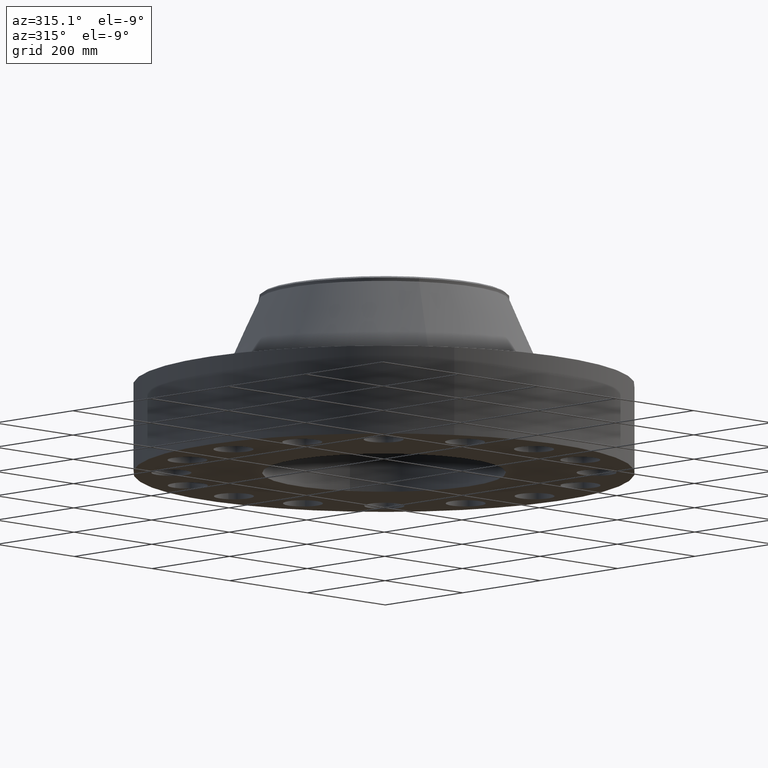
[diagram: clean part render]
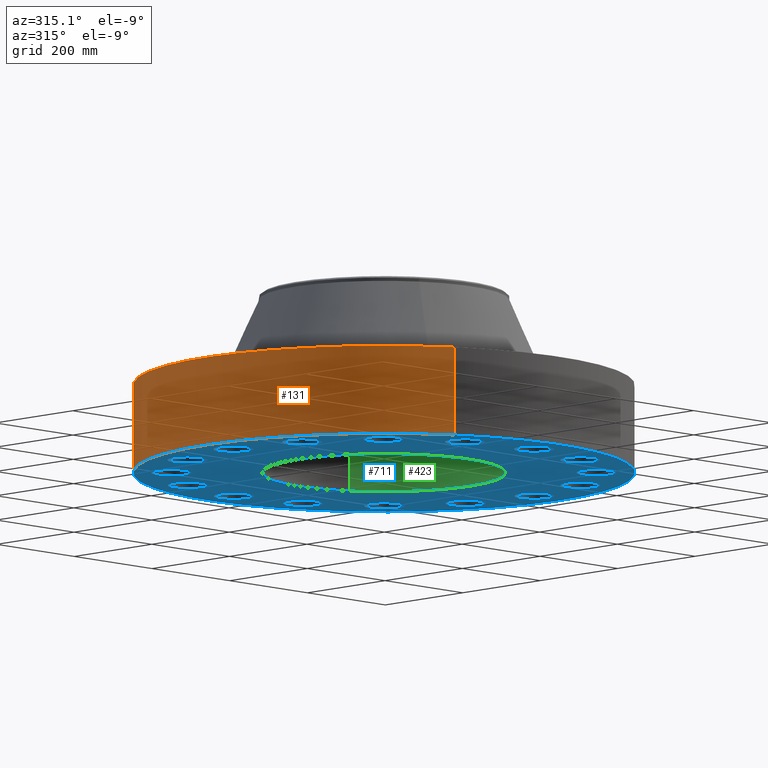
[diagram: same view with three faces highlighted in distinct colors, each labeled with its STEP entity id]
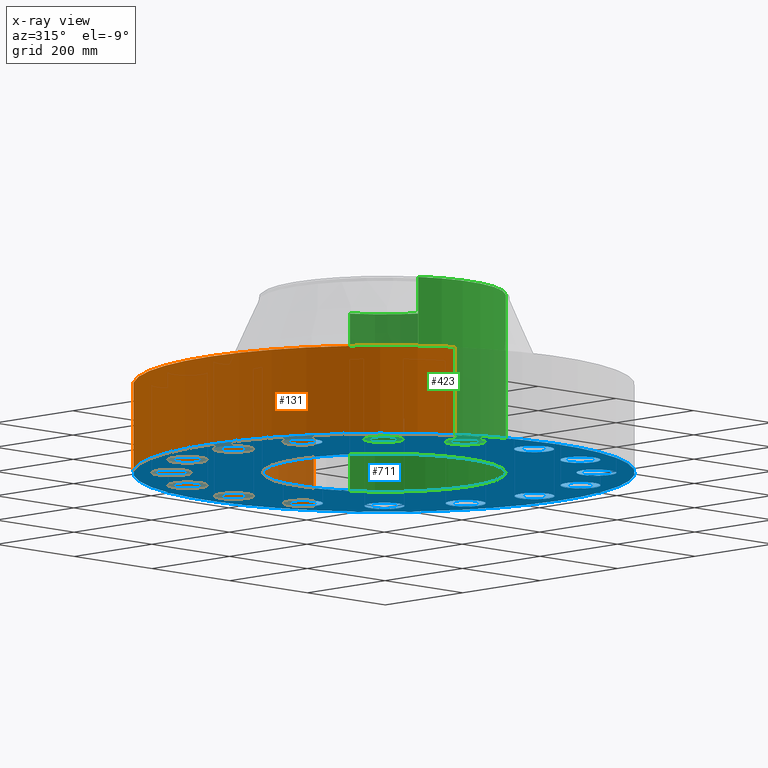
[diagram: x-ray of the same camera — body ghosted, the three highlighted faces saturated]
A machine part, auxiliary view with three faces highlighted in distinct colors.
The next image is the same camera in x-ray (body ghosted, the three faces saturated) — at least one of them is partly hidden behind the body in this view.
Their STEP definitions:

[orange] entity #131 — the highlighted cylindrical surface (partial cylindrical patch) has radius 457.2 mm, axis along (0, 0, -1).
#95=AXIS2_PLACEMENT_3D('Cylinder Axis2P3D',#92,#93,#94) ;
#99=AXIS2_PLACEMENT_3D('Circle Axis2P3D',#97,#98,$) ;
#115=AXIS2_PLACEMENT_3D('Circle Axis2P3D',#113,#114,$) ;
#92=CARTESIAN_POINT('Axis2P3D Location',(0.,0.,6.44000000003)) ;
#97=CARTESIAN_POINT('Axis2P3D Location',(0.,0.,2.23792987641E-015)) ;
#101=CARTESIAN_POINT('Vertex',(-8.62965969491,-15.7964861141,2.23792987641E-015)) ;
#103=CARTESIAN_POINT('Vertex',(8.62965969491,15.7964861141,2.23792987641E-015)) ;
#106=CARTESIAN_POINT('Line Origine',(-8.62965969491,-15.7964861141,3.19000000001)) ;
#110=CARTESIAN_POINT('Vertex',(-8.62965969491,-15.7964861141,6.38000000003)) ;
#113=CARTESIAN_POINT('Axis2P3D Location',(0.,0.,6.38000000003)) ;
#117=CARTESIAN_POINT('Vertex',(8.62965969491,15.7964861141,6.38000000003)) ;
#120=CARTESIAN_POINT('Line Origine',(8.62965969491,15.7964861141,3.19000000001)) ;
#93=DIRECTION('Axis2P3D Direction',(0.,0.,-0.0393700787402)) ;
#94=DIRECTION('Axis2P3D XDirection',(0.0188750212049,0.0345504945626,0.)) ;
#98=DIRECTION('Axis2P3D Direction',(0.,0.,-0.0393700787402)) ;
#107=DIRECTION('Vector Direction',(0.,0.,-0.0393700787402)) ;
#114=DIRECTION('Axis2P3D Direction',(0.,0.,-0.0393700787402)) ;
#121=DIRECTION('Vector Direction',(0.,0.,-0.0393700787402)) ;
#108=VECTOR('Line Direction',#107,0.0393700787402) ;
#122=VECTOR('Line Direction',#121,0.0393700787402) ;
#126=ORIENTED_EDGE('',*,*,#105,.F.) ;
#127=ORIENTED_EDGE('',*,*,#112,.T.) ;
#128=ORIENTED_EDGE('',*,*,#119,.T.) ;
#129=ORIENTED_EDGE('',*,*,#124,.F.) ;
#131=ADVANCED_FACE('PartBody',(#130),#96,.T.) ;
#100=CIRCLE('generated circle',#99,18.0000000001) ;
#116=CIRCLE('generated circle',#115,18.0000000001) ;
#96=CYLINDRICAL_SURFACE('generated cylinder',#95,18.0000000001) ;
#105=EDGE_CURVE('',#102,#104,#100,.T.) ;
#112=EDGE_CURVE('',#102,#111,#109,.F.) ;
#119=EDGE_CURVE('',#111,#118,#116,.T.) ;
#124=EDGE_CURVE('',#104,#118,#123,.F.) ;
#125=EDGE_LOOP('',(#126,#127,#128,#129)) ;
#130=FACE_OUTER_BOUND('',#125,.T.) ;
#109=LINE('Line',#106,#108) ;
#123=LINE('Line',#120,#122) ;
#102=VERTEX_POINT('',#101) ;
#104=VERTEX_POINT('',#103) ;
#111=VERTEX_POINT('',#110) ;
#118=VERTEX_POINT('',#117) ;

[blue] entity #711 — the highlighted planar face has unit normal (0, 0, -1).
#51=AXIS2_PLACEMENT_3D('Circle Axis2P3D',#49,#50,$) ;
#77=AXIS2_PLACEMENT_3D('Circle Axis2P3D',#75,#76,$) ;
#99=AXIS2_PLACEMENT_3D('Circle Axis2P3D',#97,#98,$) ;
#134=AXIS2_PLACEMENT_3D('Circle Axis2P3D',#132,#133,$) ;
#395=AXIS2_PLACEMENT_3D('Circle Axis2P3D',#393,#394,$) ;
#414=AXIS2_PLACEMENT_3D('Circle Axis2P3D',#412,#413,$) ;
#427=AXIS2_PLACEMENT_3D('Plane Axis2P3D',#424,#425,#426) ;
#443=AXIS2_PLACEMENT_3D('Circle Axis2P3D',#441,#442,$) ;
#452=AXIS2_PLACEMENT_3D('Circle Axis2P3D',#450,#451,$) ;
#461=AXIS2_PLACEMENT_3D('Circle Axis2P3D',#459,#460,$) ;
#470=AXIS2_PLACEMENT_3D('Circle Axis2P3D',#468,#469,$) ;
#479=AXIS2_PLACEMENT_3D('Circle Axis2P3D',#477,#478,$) ;
#488=AXIS2_PLACEMENT_3D('Circle Axis2P3D',#486,#487,$) ;
#497=AXIS2_PLACEMENT_3D('Circle Axis2P3D',#495,#496,$) ;
#506=AXIS2_PLACEMENT_3D('Circle Axis2P3D',#504,#505,$) ;
#515=AXIS2_PLACEMENT_3D('Circle Axis2P3D',#513,#514,$) ;
#524=AXIS2_PLACEMENT_3D('Circle Axis2P3D',#522,#523,$) ;
#533=AXIS2_PLACEMENT_3D('Circle Axis2P3D',#531,#532,$) ;
#542=AXIS2_PLACEMENT_3D('Circle Axis2P3D',#540,#541,$) ;
#551=AXIS2_PLACEMENT_3D('Circle Axis2P3D',#549,#550,$) ;
#560=AXIS2_PLACEMENT_3D('Circle Axis2P3D',#558,#559,$) ;
#569=AXIS2_PLACEMENT_3D('Circle Axis2P3D',#567,#568,$) ;
#578=AXIS2_PLACEMENT_3D('Circle Axis2P3D',#576,#577,$) ;
#587=AXIS2_PLACEMENT_3D('Circle Axis2P3D',#585,#586,$) ;
#596=AXIS2_PLACEMENT_3D('Circle Axis2P3D',#594,#595,$) ;
#605=AXIS2_PLACEMENT_3D('Circle Axis2P3D',#603,#604,$) ;
#614=AXIS2_PLACEMENT_3D('Circle Axis2P3D',#612,#613,$) ;
#623=AXIS2_PLACEMENT_3D('Circle Axis2P3D',#621,#622,$) ;
#632=AXIS2_PLACEMENT_3D('Circle Axis2P3D',#630,#631,$) ;
#641=AXIS2_PLACEMENT_3D('Circle Axis2P3D',#639,#640,$) ;
#650=AXIS2_PLACEMENT_3D('Circle Axis2P3D',#648,#649,$) ;
#659=AXIS2_PLACEMENT_3D('Circle Axis2P3D',#657,#658,$) ;
#668=AXIS2_PLACEMENT_3D('Circle Axis2P3D',#666,#667,$) ;
#677=AXIS2_PLACEMENT_3D('Circle Axis2P3D',#675,#676,$) ;
#686=AXIS2_PLACEMENT_3D('Circle Axis2P3D',#684,#685,$) ;
#695=AXIS2_PLACEMENT_3D('Circle Axis2P3D',#693,#694,$) ;
#704=AXIS2_PLACEMENT_3D('Circle Axis2P3D',#702,#703,$) ;
#44=CARTESIAN_POINT('Vertex',(13.9862811109,0.690372775593,0.)) ;
#49=CARTESIAN_POINT('Axis2P3D Location',(15.2500000001,0.,0.)) ;
#53=CARTESIAN_POINT('Vertex',(16.5137188892,-0.690372775593,0.)) ;
#75=CARTESIAN_POINT('Axis2P3D Location',(15.2500000001,0.,0.)) ;
#97=CARTESIAN_POINT('Axis2P3D Location',(0.,0.,2.23792987641E-015)) ;
#101=CARTESIAN_POINT('Vertex',(-8.62965969491,-15.7964861141,2.23792987641E-015)) ;
#103=CARTESIAN_POINT('Vertex',(8.62965969491,15.7964861141,2.23792987641E-015)) ;
#132=CARTESIAN_POINT('Axis2P3D Location',(0.,0.,2.23792987641E-015)) ;
#390=CARTESIAN_POINT('Vertex',(-4.1949734628,-7.67884741657,-5.25913520956E-014)) ;
#393=CARTESIAN_POINT('Axis2P3D Location',(0.,0.,-5.14723871574E-014)) ;
#397=CARTESIAN_POINT('Vertex',(4.1949734628,7.67884741657,-5.25913520956E-014)) ;
#412=CARTESIAN_POINT('Axis2P3D Location',(0.,0.,-5.14723871574E-014)) ;
#424=CARTESIAN_POINT('Axis2P3D Location',(0.,8.75000000003,0.)) ;
#441=CARTESIAN_POINT('Axis2P3D Location',(14.0891628709,-5.83592234359,0.)) ;
#445=CARTESIAN_POINT('Vertex',(13.1858330777,-4.71449678438,0.)) ;
#447=CARTESIAN_POINT('Vertex',(14.992492664,-6.9573479028,0.)) ;
#450=CARTESIAN_POINT('Axis2P3D Location',(14.0891628709,-5.83592234359,0.)) ;
#459=CARTESIAN_POINT('Axis2P3D Location',(10.7833784131,-10.7833784131,0.)) ;
#463=CARTESIAN_POINT('Vertex',(10.3779614883,-9.40162694595,0.)) ;
#465=CARTESIAN_POINT('Vertex',(11.188795338,-12.1651298803,0.)) ;
#468=CARTESIAN_POINT('Axis2P3D Location',(10.7833784131,-10.7833784131,0.)) ;
#477=CARTESIAN_POINT('Axis2P3D Location',(5.83592234359,-14.0891628709,0.)) ;
#481=CARTESIAN_POINT('Vertex',(5.99013933873,-12.657444631,0.)) ;
#483=CARTESIAN_POINT('Vertex',(5.68170534845,-15.5208811107,0.)) ;
#486=CARTESIAN_POINT('Axis2P3D Location',(5.83592234359,-14.0891628709,0.)) ;
#495=CARTESIAN_POINT('Axis2P3D Location',(-2.09805925913E-015,-15.2500000001,0.)) ;
#499=CARTESIAN_POINT('Vertex',(0.690372775593,-13.9862811109,0.)) ;
#501=CARTESIAN_POINT('Vertex',(-0.690372775593,-16.5137188892,0.)) ;
#504=CARTESIAN_POINT('Axis2P3D Location',(-2.65754172824E-015,-15.2500000001,0.)) ;
#513=CARTESIAN_POINT('Axis2P3D Location',(-5.83592234359,-14.0891628709,0.)) ;
#517=CARTESIAN_POINT('Vertex',(-4.71449678438,-13.1858330777,0.)) ;
#519=CARTESIAN_POINT('Vertex',(-6.9573479028,-14.992492664,0.)) ;
#522=CARTESIAN_POINT('Axis2P3D Location',(-5.83592234359,-14.0891628709,0.)) ;
#531=CARTESIAN_POINT('Axis2P3D Location',(-10.7833784131,-10.7833784131,0.)) ;
#535=CARTESIAN_POINT('Vertex',(-9.40162694595,-10.3779614883,0.)) ;
#537=CARTESIAN_POINT('Vertex',(-12.1651298803,-11.188795338,0.)) ;
#540=CARTESIAN_POINT('Axis2P3D Location',(-10.7833784131,-10.7833784131,0.)) ;
#549=CARTESIAN_POINT('Axis2P3D Location',(-14.0891628709,-5.83592234359,0.)) ;
#553=CARTESIAN_POINT('Vertex',(-12.657444631,-5.99013933873,0.)) ;
#555=CARTESIAN_POINT('Vertex',(-15.5208811107,-5.68170534845,0.)) ;
#558=CARTESIAN_POINT('Axis2P3D Location',(-14.0891628709,-5.83592234359,0.)) ;
#567=CARTESIAN_POINT('Axis2P3D Location',(-15.2500000001,-2.23792987641E-015,0.)) ;
#571=CARTESIAN_POINT('Vertex',(-13.9862811109,-0.690372775593,0.)) ;
#573=CARTESIAN_POINT('Vertex',(-16.5137188892,0.690372775593,0.)) ;
#576=CARTESIAN_POINT('Axis2P3D Location',(-15.2500000001,-2.23792987641E-015,0.)) ;
#585=CARTESIAN_POINT('Axis2P3D Location',(-14.0891628709,5.83592234359,0.)) ;
#589=CARTESIAN_POINT('Vertex',(-13.1858330777,4.71449678438,0.)) ;
#591=CARTESIAN_POINT('Vertex',(-14.992492664,6.9573479028,0.)) ;
#594=CARTESIAN_POINT('Axis2P3D Location',(-14.0891628709,5.83592234359,0.)) ;
#603=CARTESIAN_POINT('Axis2P3D Location',(-10.7833784131,10.7833784131,0.)) ;
#607=CARTESIAN_POINT('Vertex',(-10.3779614883,9.40162694595,0.)) ;
#609=CARTESIAN_POINT('Vertex',(-11.188795338,12.1651298803,0.)) ;
#612=CARTESIAN_POINT('Axis2P3D Location',(-10.7833784131,10.7833784131,0.)) ;
#621=CARTESIAN_POINT('Axis2P3D Location',(-5.83592234359,14.0891628709,0.)) ;
#625=CARTESIAN_POINT('Vertex',(-5.99013933873,12.657444631,0.)) ;
#627=CARTESIAN_POINT('Vertex',(-5.68170534845,15.5208811107,0.)) ;
#630=CARTESIAN_POINT('Axis2P3D Location',(-5.83592234359,14.0891628709,0.)) ;
#639=CARTESIAN_POINT('Axis2P3D Location',(-8.39223703654E-016,15.2500000001,0.)) ;
#643=CARTESIAN_POINT('Vertex',(-0.690372775593,13.9862811109,0.)) ;
#645=CARTESIAN_POINT('Vertex',(0.690372775593,16.5137188892,0.)) ;
#648=CARTESIAN_POINT('Axis2P3D Location',(-1.39870617276E-016,15.2500000001,0.)) ;
#657=CARTESIAN_POINT('Axis2P3D Location',(5.83592234359,14.0891628709,0.)) ;
#661=CARTESIAN_POINT('Vertex',(4.71449678438,13.1858330777,0.)) ;
#663=CARTESIAN_POINT('Vertex',(6.9573479028,14.992492664,-6.71378962923E-015)) ;
#666=CARTESIAN_POINT('Axis2P3D Location',(5.83592234359,14.0891628709,0.)) ;
#675=CARTESIAN_POINT('Axis2P3D Location',(10.7833784131,10.7833784131,0.)) ;
#679=CARTESIAN_POINT('Vertex',(9.40162694595,10.3779614883,0.)) ;
#681=CARTESIAN_POINT('Vertex',(12.1651298803,11.188795338,0.)) ;
#684=CARTESIAN_POINT('Axis2P3D Location',(10.7833784131,10.7833784131,0.)) ;
#693=CARTESIAN_POINT('Axis2P3D Location',(14.0891628709,5.83592234359,0.)) ;
#697=CARTESIAN_POINT('Vertex',(12.657444631,5.99013933873,0.)) ;
#699=CARTESIAN_POINT('Vertex',(15.5208811107,5.68170534845,0.)) ;
#702=CARTESIAN_POINT('Axis2P3D Location',(14.0891628709,5.83592234359,0.)) ;
#50=DIRECTION('Axis2P3D Direction',(0.,-0.,-0.0393700787402)) ;
#76=DIRECTION('Axis2P3D Direction',(0.,-0.,-0.0393700787402)) ;
#98=DIRECTION('Axis2P3D Direction',(0.,0.,-0.0393700787402)) ;
#133=DIRECTION('Axis2P3D Direction',(0.,0.,-0.0393700787402)) ;
#394=DIRECTION('Axis2P3D Direction',(0.,0.,-0.0393700787402)) ;
#413=DIRECTION('Axis2P3D Direction',(0.,0.,-0.0393700787402)) ;
#425=DIRECTION('Axis2P3D Direction',(0.,0.,-0.0393700787402)) ;
#426=DIRECTION('Axis2P3D XDirection',(0.0393700787402,0.,0.)) ;
#442=DIRECTION('Axis2P3D Direction',(0.,0.,-0.0393700787402)) ;
#451=DIRECTION('Axis2P3D Direction',(0.,0.,-0.0393700787402)) ;
#460=DIRECTION('Axis2P3D Direction',(0.,0.,-0.0393700787402)) ;
#469=DIRECTION('Axis2P3D Direction',(0.,0.,-0.0393700787402)) ;
#478=DIRECTION('Axis2P3D Direction',(0.,0.,-0.0393700787402)) ;
#487=DIRECTION('Axis2P3D Direction',(0.,0.,-0.0393700787402)) ;
#496=DIRECTION('Axis2P3D Direction',(0.,0.,-0.0393700787402)) ;
#505=DIRECTION('Axis2P3D Direction',(0.,0.,-0.0393700787402)) ;
#514=DIRECTION('Axis2P3D Direction',(0.,0.,-0.0393700787402)) ;
#523=DIRECTION('Axis2P3D Direction',(0.,0.,-0.0393700787402)) ;
#532=DIRECTION('Axis2P3D Direction',(0.,0.,-0.0393700787402)) ;
#541=DIRECTION('Axis2P3D Direction',(0.,0.,-0.0393700787402)) ;
#550=DIRECTION('Axis2P3D Direction',(0.,0.,-0.0393700787402)) ;
#559=DIRECTION('Axis2P3D Direction',(0.,0.,-0.0393700787402)) ;
#568=DIRECTION('Axis2P3D Direction',(0.,0.,-0.0393700787402)) ;
#577=DIRECTION('Axis2P3D Direction',(0.,0.,-0.0393700787402)) ;
#586=DIRECTION('Axis2P3D Direction',(0.,0.,-0.0393700787402)) ;
#595=DIRECTION('Axis2P3D Direction',(0.,0.,-0.0393700787402)) ;
#604=DIRECTION('Axis2P3D Direction',(0.,0.,-0.0393700787402)) ;
#613=DIRECTION('Axis2P3D Direction',(0.,0.,-0.0393700787402)) ;
#622=DIRECTION('Axis2P3D Direction',(0.,0.,-0.0393700787402)) ;
#631=DIRECTION('Axis2P3D Direction',(0.,0.,-0.0393700787402)) ;
#640=DIRECTION('Axis2P3D Direction',(0.,0.,-0.0393700787402)) ;
#649=DIRECTION('Axis2P3D Direction',(0.,0.,-0.0393700787402)) ;
#658=DIRECTION('Axis2P3D Direction',(0.,0.,-0.0393700787402)) ;
#667=DIRECTION('Axis2P3D Direction',(0.,0.,-0.0393700787402)) ;
#676=DIRECTION('Axis2P3D Direction',(0.,0.,-0.0393700787402)) ;
#685=DIRECTION('Axis2P3D Direction',(0.,0.,-0.0393700787402)) ;
#694=DIRECTION('Axis2P3D Direction',(0.,0.,-0.0393700787402)) ;
#703=DIRECTION('Axis2P3D Direction',(0.,0.,-0.0393700787402)) ;
#430=ORIENTED_EDGE('',*,*,#105,.T.) ;
#431=ORIENTED_EDGE('',*,*,#136,.T.) ;
#434=ORIENTED_EDGE('',*,*,#79,.F.) ;
#435=ORIENTED_EDGE('',*,*,#55,.F.) ;
#438=ORIENTED_EDGE('',*,*,#416,.F.) ;
#439=ORIENTED_EDGE('',*,*,#399,.F.) ;
#456=ORIENTED_EDGE('',*,*,#449,.F.) ;
#457=ORIENTED_EDGE('',*,*,#454,.F.) ;
#474=ORIENTED_EDGE('',*,*,#467,.F.) ;
#475=ORIENTED_EDGE('',*,*,#472,.F.) ;
#492=ORIENTED_EDGE('',*,*,#485,.F.) ;
#493=ORIENTED_EDGE('',*,*,#490,.F.) ;
#510=ORIENTED_EDGE('',*,*,#503,.F.) ;
#511=ORIENTED_EDGE('',*,*,#508,.F.) ;
#528=ORIENTED_EDGE('',*,*,#521,.F.) ;
#529=ORIENTED_EDGE('',*,*,#526,.F.) ;
#546=ORIENTED_EDGE('',*,*,#539,.F.) ;
#547=ORIENTED_EDGE('',*,*,#544,.F.) ;
#564=ORIENTED_EDGE('',*,*,#557,.F.) ;
#565=ORIENTED_EDGE('',*,*,#562,.F.) ;
#582=ORIENTED_EDGE('',*,*,#575,.F.) ;
#583=ORIENTED_EDGE('',*,*,#580,.F.) ;
#600=ORIENTED_EDGE('',*,*,#593,.F.) ;
#601=ORIENTED_EDGE('',*,*,#598,.F.) ;
#618=ORIENTED_EDGE('',*,*,#611,.F.) ;
#619=ORIENTED_EDGE('',*,*,#616,.F.) ;
#636=ORIENTED_EDGE('',*,*,#629,.F.) ;
#637=ORIENTED_EDGE('',*,*,#634,.F.) ;
#654=ORIENTED_EDGE('',*,*,#647,.F.) ;
#655=ORIENTED_EDGE('',*,*,#652,.F.) ;
#672=ORIENTED_EDGE('',*,*,#665,.F.) ;
#673=ORIENTED_EDGE('',*,*,#670,.F.) ;
#690=ORIENTED_EDGE('',*,*,#683,.F.) ;
#691=ORIENTED_EDGE('',*,*,#688,.F.) ;
#708=ORIENTED_EDGE('',*,*,#701,.F.) ;
#709=ORIENTED_EDGE('',*,*,#706,.F.) ;
#436=FACE_BOUND('',#433,.T.) ;
#440=FACE_BOUND('',#437,.T.) ;
#458=FACE_BOUND('',#455,.T.) ;
#476=FACE_BOUND('',#473,.T.) ;
#494=FACE_BOUND('',#491,.T.) ;
#512=FACE_BOUND('',#509,.T.) ;
#530=FACE_BOUND('',#527,.T.) ;
#548=FACE_BOUND('',#545,.T.) ;
#566=FACE_BOUND('',#563,.T.) ;
#584=FACE_BOUND('',#581,.T.) ;
#602=FACE_BOUND('',#599,.T.) ;
#620=FACE_BOUND('',#617,.T.) ;
#638=FACE_BOUND('',#635,.T.) ;
#656=FACE_BOUND('',#653,.T.) ;
#674=FACE_BOUND('',#671,.T.) ;
#692=FACE_BOUND('',#689,.T.) ;
#710=FACE_BOUND('',#707,.T.) ;
#711=ADVANCED_FACE('PartBody',(#432,#436,#440,#458,#476,#494,#512,#530,#548,#566,#584,#602,#620,#638,#656,#674,#692,#710),#428,.T.) ;
#52=CIRCLE('generated circle',#51,1.44000000001) ;
#78=CIRCLE('generated circle',#77,1.44000000001) ;
#100=CIRCLE('generated circle',#99,18.0000000001) ;
#135=CIRCLE('generated circle',#134,18.0000000001) ;
#396=CIRCLE('generated circle',#395,8.75000000003) ;
#415=CIRCLE('generated circle',#414,8.75000000003) ;
#444=CIRCLE('generated circle',#443,1.44000000001) ;
#453=CIRCLE('generated circle',#452,1.44000000001) ;
#462=CIRCLE('generated circle',#461,1.44000000001) ;
#471=CIRCLE('generated circle',#470,1.44000000001) ;
#480=CIRCLE('generated circle',#479,1.44000000001) ;
#489=CIRCLE('generated circle',#488,1.44000000001) ;
#498=CIRCLE('generated circle',#497,1.44000000001) ;
#507=CIRCLE('generated circle',#506,1.44000000001) ;
#516=CIRCLE('generated circle',#515,1.44000000001) ;
#525=CIRCLE('generated circle',#524,1.44000000001) ;
#534=CIRCLE('generated circle',#533,1.44000000001) ;
#543=CIRCLE('generated circle',#542,1.44000000001) ;
#552=CIRCLE('generated circle',#551,1.44000000001) ;
#561=CIRCLE('generated circle',#560,1.44000000001) ;
#570=CIRCLE('generated circle',#569,1.44000000001) ;
#579=CIRCLE('generated circle',#578,1.44000000001) ;
#588=CIRCLE('generated circle',#587,1.44000000001) ;
#597=CIRCLE('generated circle',#596,1.44000000001) ;
#606=CIRCLE('generated circle',#605,1.44000000001) ;
#615=CIRCLE('generated circle',#614,1.44000000001) ;
#624=CIRCLE('generated circle',#623,1.44000000001) ;
#633=CIRCLE('generated circle',#632,1.44000000001) ;
#642=CIRCLE('generated circle',#641,1.44000000001) ;
#651=CIRCLE('generated circle',#650,1.44000000001) ;
#660=CIRCLE('generated circle',#659,1.44000000001) ;
#669=CIRCLE('generated circle',#668,1.44000000001) ;
#678=CIRCLE('generated circle',#677,1.44000000001) ;
#687=CIRCLE('generated circle',#686,1.44000000001) ;
#696=CIRCLE('generated circle',#695,1.44000000001) ;
#705=CIRCLE('generated circle',#704,1.44000000001) ;
#55=EDGE_CURVE('',#45,#54,#52,.T.) ;
#79=EDGE_CURVE('',#54,#45,#78,.T.) ;
#105=EDGE_CURVE('',#102,#104,#100,.T.) ;
#136=EDGE_CURVE('',#104,#102,#135,.T.) ;
#399=EDGE_CURVE('',#391,#398,#396,.T.) ;
#416=EDGE_CURVE('',#398,#391,#415,.T.) ;
#449=EDGE_CURVE('',#446,#448,#444,.T.) ;
#454=EDGE_CURVE('',#448,#446,#453,.T.) ;
#467=EDGE_CURVE('',#464,#466,#462,.T.) ;
#472=EDGE_CURVE('',#466,#464,#471,.T.) ;
#485=EDGE_CURVE('',#482,#484,#480,.T.) ;
#490=EDGE_CURVE('',#484,#482,#489,.T.) ;
#503=EDGE_CURVE('',#500,#502,#498,.T.) ;
#508=EDGE_CURVE('',#502,#500,#507,.T.) ;
#521=EDGE_CURVE('',#518,#520,#516,.T.) ;
#526=EDGE_CURVE('',#520,#518,#525,.T.) ;
#539=EDGE_CURVE('',#536,#538,#534,.T.) ;
#544=EDGE_CURVE('',#538,#536,#543,.T.) ;
#557=EDGE_CURVE('',#554,#556,#552,.T.) ;
#562=EDGE_CURVE('',#556,#554,#561,.T.) ;
#575=EDGE_CURVE('',#572,#574,#570,.T.) ;
#580=EDGE_CURVE('',#574,#572,#579,.T.) ;
#593=EDGE_CURVE('',#590,#592,#588,.T.) ;
#598=EDGE_CURVE('',#592,#590,#597,.T.) ;
#611=EDGE_CURVE('',#608,#610,#606,.T.) ;
#616=EDGE_CURVE('',#610,#608,#615,.T.) ;
#629=EDGE_CURVE('',#626,#628,#624,.T.) ;
#634=EDGE_CURVE('',#628,#626,#633,.T.) ;
#647=EDGE_CURVE('',#644,#646,#642,.T.) ;
#652=EDGE_CURVE('',#646,#644,#651,.T.) ;
#665=EDGE_CURVE('',#662,#664,#660,.T.) ;
#670=EDGE_CURVE('',#664,#662,#669,.T.) ;
#683=EDGE_CURVE('',#680,#682,#678,.T.) ;
#688=EDGE_CURVE('',#682,#680,#687,.T.) ;
#701=EDGE_CURVE('',#698,#700,#696,.T.) ;
#706=EDGE_CURVE('',#700,#698,#705,.T.) ;
#429=EDGE_LOOP('',(#430,#431)) ;
#433=EDGE_LOOP('',(#434,#435)) ;
#437=EDGE_LOOP('',(#438,#439)) ;
#455=EDGE_LOOP('',(#456,#457)) ;
#473=EDGE_LOOP('',(#474,#475)) ;
#491=EDGE_LOOP('',(#492,#493)) ;
#509=EDGE_LOOP('',(#510,#511)) ;
#527=EDGE_LOOP('',(#528,#529)) ;
#545=EDGE_LOOP('',(#546,#547)) ;
#563=EDGE_LOOP('',(#564,#565)) ;
#581=EDGE_LOOP('',(#582,#583)) ;
#599=EDGE_LOOP('',(#600,#601)) ;
#617=EDGE_LOOP('',(#618,#619)) ;
#635=EDGE_LOOP('',(#636,#637)) ;
#653=EDGE_LOOP('',(#654,#655)) ;
#671=EDGE_LOOP('',(#672,#673)) ;
#689=EDGE_LOOP('',(#690,#691)) ;
#707=EDGE_LOOP('',(#708,#709)) ;
#432=FACE_OUTER_BOUND('',#429,.T.) ;
#428=PLANE('',#427) ;
#45=VERTEX_POINT('',#44) ;
#54=VERTEX_POINT('',#53) ;
#102=VERTEX_POINT('',#101) ;
#104=VERTEX_POINT('',#103) ;
#391=VERTEX_POINT('',#390) ;
#398=VERTEX_POINT('',#397) ;
#446=VERTEX_POINT('',#445) ;
#448=VERTEX_POINT('',#447) ;
#464=VERTEX_POINT('',#463) ;
#466=VERTEX_POINT('',#465) ;
#482=VERTEX_POINT('',#481) ;
#484=VERTEX_POINT('',#483) ;
#500=VERTEX_POINT('',#499) ;
#502=VERTEX_POINT('',#501) ;
#518=VERTEX_POINT('',#517) ;
#520=VERTEX_POINT('',#519) ;
#536=VERTEX_POINT('',#535) ;
#538=VERTEX_POINT('',#537) ;
#554=VERTEX_POINT('',#553) ;
#556=VERTEX_POINT('',#555) ;
#572=VERTEX_POINT('',#571) ;
#574=VERTEX_POINT('',#573) ;
#590=VERTEX_POINT('',#589) ;
#592=VERTEX_POINT('',#591) ;
#608=VERTEX_POINT('',#607) ;
#610=VERTEX_POINT('',#609) ;
#626=VERTEX_POINT('',#625) ;
#628=VERTEX_POINT('',#627) ;
#644=VERTEX_POINT('',#643) ;
#646=VERTEX_POINT('',#645) ;
#662=VERTEX_POINT('',#661) ;
#664=VERTEX_POINT('',#663) ;
#680=VERTEX_POINT('',#679) ;
#682=VERTEX_POINT('',#681) ;
#698=VERTEX_POINT('',#697) ;
#700=VERTEX_POINT('',#699) ;

[green] entity #423 — the highlighted cylindrical surface (partial cylindrical patch) has radius 222.25 mm, axis along (0, 0, -1).
#365=AXIS2_PLACEMENT_3D('Circle Axis2P3D',#363,#364,$) ;
#384=AXIS2_PLACEMENT_3D('Cylinder Axis2P3D',#381,#382,#383) ;
#414=AXIS2_PLACEMENT_3D('Circle Axis2P3D',#412,#413,$) ;
#358=CARTESIAN_POINT('Vertex',(-4.1949734628,-7.67884741657,12.8800000001)) ;
#360=CARTESIAN_POINT('Vertex',(4.1949734628,7.67884741657,12.8800000001)) ;
#363=CARTESIAN_POINT('Axis2P3D Location',(0.,0.,12.8800000001)) ;
#381=CARTESIAN_POINT('Axis2P3D Location',(0.,0.,6.44000000003)) ;
#386=CARTESIAN_POINT('Line Origine',(-4.1949734628,-7.67884741657,6.44000000003)) ;
#390=CARTESIAN_POINT('Vertex',(-4.1949734628,-7.67884741657,-5.25913520956E-014)) ;
#397=CARTESIAN_POINT('Vertex',(4.1949734628,7.67884741657,-5.25913520956E-014)) ;
#400=CARTESIAN_POINT('Line Origine',(4.1949734628,7.67884741657,6.44000000003)) ;
#412=CARTESIAN_POINT('Axis2P3D Location',(0.,0.,-5.14723871574E-014)) ;
#364=DIRECTION('Axis2P3D Direction',(0.,0.,-0.0393700787402)) ;
#382=DIRECTION('Axis2P3D Direction',(0.,0.,-0.0393700787402)) ;
#383=DIRECTION('Axis2P3D XDirection',(0.0188750212049,0.0345504945626,0.)) ;
#387=DIRECTION('Vector Direction',(0.,0.,-0.0393700787402)) ;
#401=DIRECTION('Vector Direction',(0.,0.,-0.0393700787402)) ;
#413=DIRECTION('Axis2P3D Direction',(0.,0.,-0.0393700787402)) ;
#388=VECTOR('Line Direction',#387,0.0393700787402) ;
#402=VECTOR('Line Direction',#401,0.0393700787402) ;
#418=ORIENTED_EDGE('',*,*,#367,.F.) ;
#419=ORIENTED_EDGE('',*,*,#404,.T.) ;
#420=ORIENTED_EDGE('',*,*,#416,.T.) ;
#421=ORIENTED_EDGE('',*,*,#392,.F.) ;
#423=ADVANCED_FACE('PartBody',(#422),#385,.F.) ;
#366=CIRCLE('generated circle',#365,8.75000000004) ;
#415=CIRCLE('generated circle',#414,8.75000000003) ;
#385=CYLINDRICAL_SURFACE('generated cylinder',#384,8.75000000003) ;
#367=EDGE_CURVE('',#361,#359,#366,.T.) ;
#392=EDGE_CURVE('',#359,#391,#389,.T.) ;
#404=EDGE_CURVE('',#361,#398,#403,.T.) ;
#416=EDGE_CURVE('',#398,#391,#415,.T.) ;
#417=EDGE_LOOP('',(#418,#419,#420,#421)) ;
#422=FACE_OUTER_BOUND('',#417,.T.) ;
#389=LINE('Line',#386,#388) ;
#403=LINE('Line',#400,#402) ;
#359=VERTEX_POINT('',#358) ;
#361=VERTEX_POINT('',#360) ;
#391=VERTEX_POINT('',#390) ;
#398=VERTEX_POINT('',#397) ;